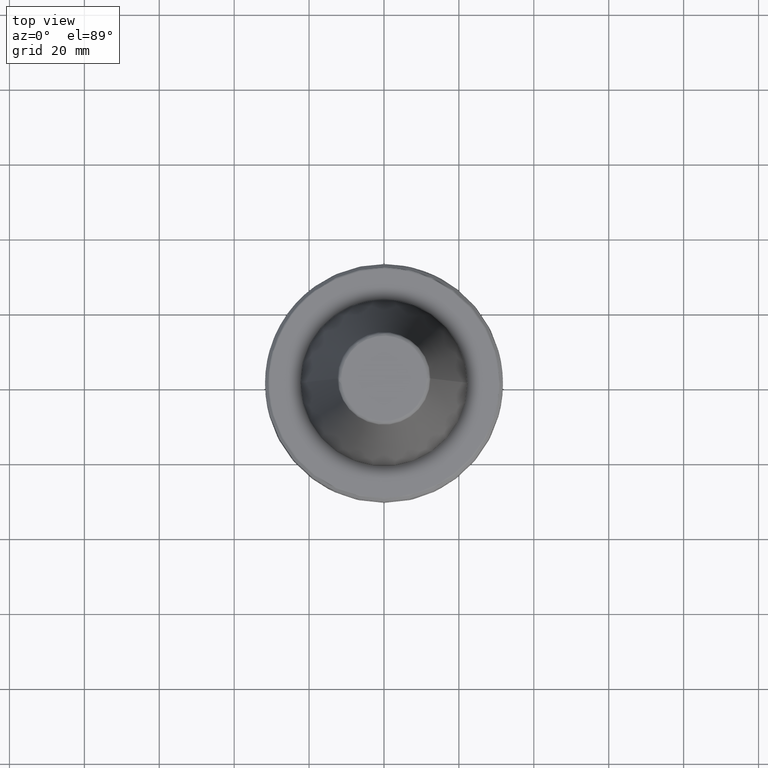
[diagram: clean part render]
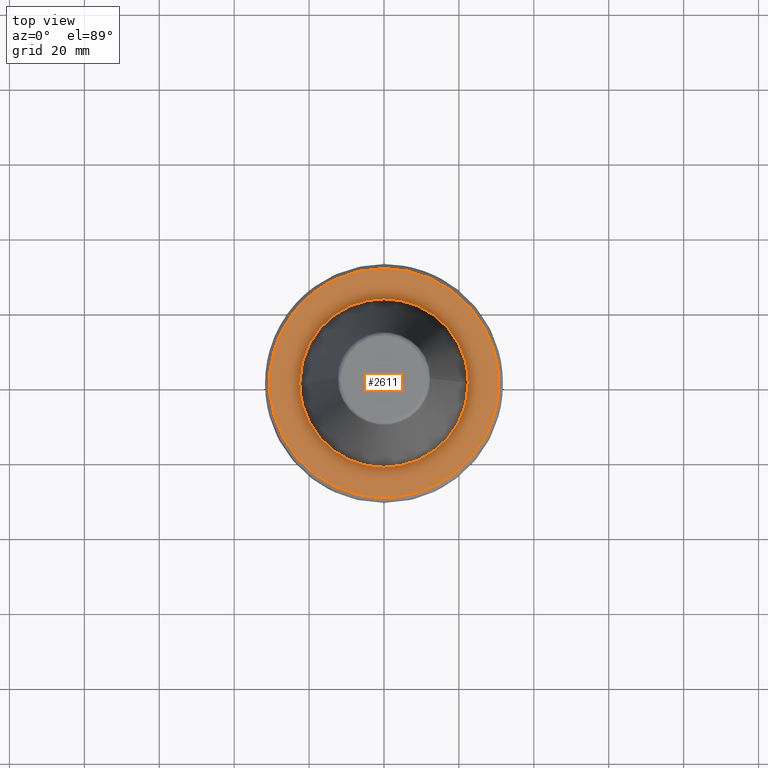
[diagram: same view with one face highlighted and labeled with its STEP entity id]
A machine part, top view. The second image highlights one B-rep face of the part: STEP entity #2611.
In plain terms, the highlighted planar face has unit normal (0, 0, 1).
Its self-contained STEP definition (entity closure, byte-faithful):
#4 = CARTESIAN_POINT ( 'NONE',  ( 2.528533460621721600, 30.47970956005833500, -3.200000000000000600 ) ) ;
#10 = CARTESIAN_POINT ( 'NONE',  ( -8.442993445774373400, 29.39627059819971000, -3.200000000000001100 ) ) ;
#24 = ORIENTED_EDGE ( 'NONE', *, *, #1179, .T. ) ;
#42 = ORIENTED_EDGE ( 'NONE', *, *, #1613, .T. ) ;
#48 = CARTESIAN_POINT ( 'NONE',  ( -29.30593451889330600, -8.750000000000005300, -3.199999999999998800 ) ) ;
#78 = CARTESIAN_POINT ( 'NONE',  ( 8.896980882703543300, -20.66783356944393200, -3.199999999999999300 ) ) ;
#86 = CARTESIAN_POINT ( 'NONE',  ( -28.10145510426450200, 12.21006217780604800, -3.200000000000000200 ) ) ;
#87 = CARTESIAN_POINT ( 'NONE',  ( 11.67597141480891300, -19.24838585783804100, -3.200000000000000600 ) ) ;
#93 = CARTESIAN_POINT ( 'NONE',  ( 9.504079748831721000, -20.40055232577914500, -3.200000000000000600 ) ) ;
#96 = CARTESIAN_POINT ( 'NONE',  ( -21.74157624392201900, 5.873028755144217100, -3.200000000000000200 ) ) ;
#99 = CARTESIAN_POINT ( 'NONE',  ( 15.48792760813897800, -26.42690957763580100, -3.200000000000000200 ) ) ;
#103 = CARTESIAN_POINT ( 'NONE',  ( -18.88550870197691400, 12.23098025896405400, -3.200000000000000200 ) ) ;
#114 = CARTESIAN_POINT ( 'NONE',  ( -8.896980882711639900, 20.66783356944006700, -3.199999999999999700 ) ) ;
#123 = CARTESIAN_POINT ( 'NONE',  ( -4.115307463143350800, 22.12045849206799600, -3.199999999999999700 ) ) ;
#136 = CARTESIAN_POINT ( 'NONE',  ( 5.873028755120320600, 21.74157624393063400, -3.200000000000000600 ) ) ;
#147 = CARTESIAN_POINT ( 'NONE',  ( 12.23098025896375600, 18.88550870197690300, -3.199999999999999700 ) ) ;
#156 = CARTESIAN_POINT ( 'NONE',  ( 20.66783356944120300, 8.896980882709847500, -3.200000000000000200 ) ) ;
#167 = CARTESIAN_POINT ( 'NONE',  ( 22.12045798509555900, 4.115310202398825700, -3.200000000000000600 ) ) ;
#175 = CIRCLE ( 'NONE', #420, 30.58431457505076500 ) ;
#189 = CARTESIAN_POINT ( 'NONE',  ( -27.28410426008420900, -13.84330885026471600, -3.199999999999999300 ) ) ;
#194 = CARTESIAN_POINT ( 'NONE',  ( -27.65365956857750300, -13.06437642884285200, -3.199999999999999700 ) ) ;
#199 = CARTESIAN_POINT ( 'NONE',  ( -27.67364674244797800, -13.02197758003961100, -3.199999999999998400 ) ) ;
#209 = CARTESIAN_POINT ( 'NONE',  ( -8.112282896148109000, -20.98673507276421500, -3.200000000000000200 ) ) ;
#213 = CARTESIAN_POINT ( 'NONE',  ( 12.39175045571029600, -18.78040064549236700, -3.200000000000000200 ) ) ;
#214 = CARTESIAN_POINT ( 'NONE',  ( 29.30593451889330900, 8.750000000000010700, -3.199999999999994400 ) ) ;
#217 = CARTESIAN_POINT ( 'NONE',  ( 12.47437238289376500, -18.72563884435562500, -3.200000000000000600 ) ) ;
#221 = ORIENTED_EDGE ( 'NONE', *, *, #3204, .T. ) ;
#226 = CARTESIAN_POINT ( 'NONE',  ( 5.341505914814308500, -21.86223353763812900, -3.199999999999999700 ) ) ;
#227 = CARTESIAN_POINT ( 'NONE',  ( 24.54047191476656700, 18.25550594148981200, -3.199999999999999700 ) ) ;
#230 = CARTESIAN_POINT ( 'NONE',  ( 6.571610993358049800, -21.54071728405216400, -3.200000000000000600 ) ) ;
#235 = CARTESIAN_POINT ( 'NONE',  ( 7.603831144541866000, -21.18878749288407800, -3.200000000000000200 ) ) ;
#237 = VERTEX_POINT ( 'NONE', #1427 ) ;
#239 = CARTESIAN_POINT ( 'NONE',  ( 8.324524703929661500, -20.90345235396846500, -3.200000000000000600 ) ) ;
#241 = CARTESIAN_POINT ( 'NONE',  ( 16.33427142385977900, 25.85726144149449000, -3.200000000000000200 ) ) ;
#251 = CARTESIAN_POINT ( 'NONE',  ( 1.756429892758242500, 30.54018886217256700, -3.200000000000000200 ) ) ;
#253 = CARTESIAN_POINT ( 'NONE',  ( 4.407618502877016700, -22.06440325786277500, -3.200000000000000600 ) ) ;
#254 = CARTESIAN_POINT ( 'NONE',  ( 4.719991316668444600, -22.00072453873692200, -3.200000000000000200 ) ) ;
#257 = CARTESIAN_POINT ( 'NONE',  ( 4.115307463144500100, -22.12045849206793200, -3.200000000000000600 ) ) ;
#260 = CARTESIAN_POINT ( 'NONE',  ( -9.340167935470905300, 29.12987215589119200, -3.200000000000001100 ) ) ;
#261 = CARTESIAN_POINT ( 'NONE',  ( -2.907343231839132800, -22.31611948088118800, -3.200000000000000600 ) ) ;
#266 = CARTESIAN_POINT ( 'NONE',  ( -1.715646395057947200, -22.45307472456143200, -3.200000000000000600 ) ) ;
#271 = CARTESIAN_POINT ( 'NONE',  ( -0.6879287486564484900, -22.50001621479418300, -3.200000000000000200 ) ) ;
#290 = CARTESIAN_POINT ( 'NONE',  ( 2.741286511513688400, -22.37475781689234500, -3.199999999999999700 ) ) ;
#300 = CARTESIAN_POINT ( 'NONE',  ( 1.375857497312903900, -22.49996757041163400, -3.199999999999999300 ) ) ;
#312 = CARTESIAN_POINT ( 'NONE',  ( -8.988933404976533500, -20.64043889494298900, -3.199999999999999700 ) ) ;
#318 = CARTESIAN_POINT ( 'NONE',  ( -8.237955812652499400, -20.93772414133978200, -3.199999999999999700 ) ) ;
#326 = CARTESIAN_POINT ( 'NONE',  ( 0.0000000000000000000, 0.0000000000000000000, -3.199999999999994400 ) ) ;
#327 = CARTESIAN_POINT ( 'NONE',  ( -8.197263642347373000, -20.95368502148340900, -3.199999999999999700 ) ) ;
#331 = B_SPLINE_CURVE_WITH_KNOTS ( 'NONE', 3,
 ( #214, #3037, #479, #2288, #749, #2551, #1012, #2807, #1281, #3046, #1539, #3301, #1805, #227, #2056, #490, #2300, #764, #2562, #1025, #2817, #1295, #3059, #1552, #3312, #1822, #241, #2067, #501, #2312, #775, #2575, #1036, #2830, #1308, #3070, #1563, #4, #1829, #251, #2077, #511, #2321, #784, #2588, #1051, #2838, #1320, #3082, #1576, #10, #1838, #260, #2087, #524, #2334, #793, #2601, #1060, #2846, #1330, #3094 ),
 .UNSPECIFIED., .F., .F.,
 ( 4, 1, 1, 1, 1, 2, 2, 1, 2, 2, 2, 1, 1, 2, 2, 1, 1, 1, 2, 2, 2, 1, 1, 1, 1, 2, 2, 1, 2, 2, 2, 1, 1, 2, 2, 1, 1, 1, 2, 2, 4 ),
 ( 0.0000000000000000000, 0.06249999999999914000, 0.09374999999999879300, 0.1093749999999986100, 0.1171874999999985700, 0.1210937499999985800, 0.1249999999999986100, 0.1562499999999987800, 0.1718749999999989500, 0.1874999999999990800, 0.2500000000000001100, 0.2812500000000005600, 0.2968750000000008300, 0.3046875000000010000, 0.3125000000000011700, 0.3437500000000018900, 0.3593750000000022200, 0.3671875000000023300, 0.3710937500000023900, 0.3750000000000024400, 0.5000000000000025500, 0.5625000000000025500, 0.5937500000000025500, 0.6093750000000025500, 0.6171875000000025500, 0.6210937500000025500, 0.6250000000000024400, 0.6562500000000025500, 0.6718750000000025500, 0.6875000000000025500, 0.7500000000000026600, 0.7812500000000026600, 0.7968750000000026600, 0.8046875000000026600, 0.8125000000000026600, 0.8437500000000025500, 0.8593750000000025500, 0.8671875000000025500, 0.8710937500000026600, 0.8750000000000026600, 1.000000000000000000 ),
 .UNSPECIFIED. ) ;
#333 = CARTESIAN_POINT ( 'NONE',  ( -11.75138774876684200, -19.18907189198004900, -3.200000000000000200 ) ) ;
#342 = CARTESIAN_POINT ( 'NONE',  ( -29.30593451889331300, 8.750000000000008900, -3.199999999999999300 ) ) ;
#343 = CARTESIAN_POINT ( 'NONE',  ( -11.18287332204048700, -19.53083148214458500, -3.200000000000000600 ) ) ;
#347 = CARTESIAN_POINT ( 'NONE',  ( -10.02279629560528400, -20.16961076428609100, -3.200000000000000600 ) ) ;
#349 = CARTESIAN_POINT ( 'NONE',  ( -21.14787063409543700, 7.686207123284956900, -3.200000000000000200 ) ) ;
#361 = CARTESIAN_POINT ( 'NONE',  ( -17.00797338682269500, 14.81177920651246400, -3.200000000000000600 ) ) ;
#372 = CARTESIAN_POINT ( 'NONE',  ( -4.071751450877116900, -22.12851860711453300, -3.199999999999999700 ) ) ;
#375 = CARTESIAN_POINT ( 'NONE',  ( -8.458563634142274500, 20.84958280862222700, -3.200000000000000200 ) ) ;
#379 = CARTESIAN_POINT ( 'NONE',  ( -4.051866326836864700, -22.13216683465148900, -3.199999999999999700 ) ) ;
#384 = CARTESIAN_POINT ( 'NONE',  ( -4.009555819172765800, -22.13987114982767300, -3.200000000000000200 ) ) ;
#388 = CARTESIAN_POINT ( 'NONE',  ( -1.375857497237935400, 22.49996757040714000, -3.199999999999999700 ) ) ;
#391 = CARTESIAN_POINT ( 'NONE',  ( -7.086048807701388300, -21.36063849915201700, -3.200000000000001100 ) ) ;
#393 = CARTESIAN_POINT ( 'NONE',  ( -5.873028755191068500, -21.74157624390884200, -3.200000000000001100 ) ) ;
#396 = CARTESIAN_POINT ( 'NONE',  ( 7.686207123274499500, 21.14787063409919600, -3.200000000000000600 ) ) ;
#400 = CARTESIAN_POINT ( 'NONE',  ( -4.811519987949943700, -21.99164062164117100, -3.199999999999999700 ) ) ;
#406 = CARTESIAN_POINT ( 'NONE',  ( 14.81177920650271000, 17.00797338683744500, -3.200000000000000600 ) ) ;
#419 = CARTESIAN_POINT ( 'NONE',  ( 20.84958280862257900, 8.458563634141711400, -3.200000000000000200 ) ) ;
#420 = AXIS2_PLACEMENT_3D ( 'NONE', #662, #888, #3262 ) ;
#430 = CARTESIAN_POINT ( 'NONE',  ( 22.50000000000000400, 1.376388306145680500, -3.200000000000000200 ) ) ;
#447 = CARTESIAN_POINT ( 'NONE',  ( 19.53083148214621900, -11.18287332203636600, -3.200000000000000200 ) ) ;
#465 = CARTESIAN_POINT ( 'NONE',  ( 13.42792791067997600, -18.06135158014202000, -3.199999999999999700 ) ) ;
#470 = CARTESIAN_POINT ( 'NONE',  ( 19.03780993567572800, -11.99256734168571200, -3.200000000000000200 ) ) ;
#473 = CARTESIAN_POINT ( 'NONE',  ( 19.18907189198100100, -11.75138774876444200, -3.200000000000001100 ) ) ;
#477 = CARTESIAN_POINT ( 'NONE',  ( 18.93590339580105900, -12.15280497094321500, -3.200000000000000200 ) ) ;
#479 = CARTESIAN_POINT ( 'NONE',  ( 28.33583760078837300, 11.62329757012846600, -3.200000000000001500 ) ) ;
#481 = CARTESIAN_POINT ( 'NONE',  ( 12.63533988221884200, -18.61742605471019700, -3.200000000000000200 ) ) ;
#484 = CARTESIAN_POINT ( 'NONE',  ( 12.87560569880346700, -18.45365423866068300, -3.200000000000000600 ) ) ;
#490 = CARTESIAN_POINT ( 'NONE',  ( 22.77429056695101300, 20.45246270162071100, -3.200000000000001100 ) ) ;
#492 = CARTESIAN_POINT ( 'NONE',  ( 17.00797338681919900, -14.81177920651095200, -3.200000000000000600 ) ) ;
#496 = CARTESIAN_POINT ( 'NONE',  ( 17.98264380952407700, -13.61204652636657500, -3.199999999999999700 ) ) ;
#499 = CARTESIAN_POINT ( 'NONE',  ( 18.88550870197563500, -12.23098025896565000, -3.200000000000000200 ) ) ;
#501 = CARTESIAN_POINT ( 'NONE',  ( 16.13498759199690400, 25.98207429179345200, -3.200000000000000200 ) ) ;
#507 = CARTESIAN_POINT ( 'NONE',  ( 15.36086717163637700, -16.45896426179050900, -3.199999999999999700 ) ) ;
#510 = CARTESIAN_POINT ( 'NONE',  ( 14.49938022714922100, -17.23607257882569900, -3.199999999999999300 ) ) ;
#511 = CARTESIAN_POINT ( 'NONE',  ( -0.1069271606362427600, 30.58574494882276800, -3.199999999999999700 ) ) ;
#512 = CARTESIAN_POINT ( 'NONE',  ( -6.054356345058203600, -29.98396483374370200, -3.199999999999999300 ) ) ;
#524 = CARTESIAN_POINT ( 'NONE',  ( -11.24038425298612900, 28.44688173159232700, -3.199999999999999300 ) ) ;
#528 = CARTESIAN_POINT ( 'NONE',  ( 4.139014538615635200, -22.11603594838316400, -3.200000000000000200 ) ) ;
#534 = CARTESIAN_POINT ( 'NONE',  ( 4.183831549480899500, -22.10760170058227900, -3.200000000000000200 ) ) ;
#539 = CARTESIAN_POINT ( 'NONE',  ( 4.251028217301676900, -22.09485092206981000, -3.200000000000000200 ) ) ;
#541 = CARTESIAN_POINT ( 'NONE',  ( 6.650821378641679400, -29.87181404184202200, -3.200000000000000600 ) ) ;
#550 = CARTESIAN_POINT ( 'NONE',  ( 5.458850156843987600, -30.10416084471147600, -3.199999999999999700 ) ) ;
#557 = CARTESIAN_POINT ( 'NONE',  ( 4.606748291940482100, -30.23542110148255100, -3.200000000000001100 ) ) ;
#568 = CARTESIAN_POINT ( 'NONE',  ( 8.370451108365493600, -20.88510905071769100, -3.200000000000001100 ) ) ;
#572 = CARTESIAN_POINT ( 'NONE',  ( 8.458563634139736100, -20.84958280862343500, -3.200000000000000600 ) ) ;
#580 = CARTESIAN_POINT ( 'NONE',  ( 8.590524805351991600, -20.79589492657481400, -3.199999999999999700 ) ) ;
#586 = CARTESIAN_POINT ( 'NONE',  ( -12.23098025896354500, -18.88550870197710900, -3.200000000000000200 ) ) ;
#592 = DIRECTION ( 'NONE',  ( 1.000000000000000000, 0.0000000000000000000, 0.0000000000000000000 ) ) ;
#593 = CARTESIAN_POINT ( 'NONE',  ( -12.15280497094398100, -18.93590339580075400, -3.199999999999999700 ) ) ;
#597 = CARTESIAN_POINT ( 'NONE',  ( -11.99256734168715800, -19.03780993567515600, -3.200000000000000200 ) ) ;
#601 = CARTESIAN_POINT ( 'NONE',  ( -22.45304634867162000, 1.715799754908170300, -3.200000000000000600 ) ) ;
#609 = CARTESIAN_POINT ( 'NONE',  ( -20.98673507276603100, 8.112282896141666200, -3.200000000000000600 ) ) ;
#615 = CARTESIAN_POINT ( 'NONE',  ( -21.54071728403163600, -6.571610993424445500, -3.200000000000000600 ) ) ;
#618 = CARTESIAN_POINT ( 'NONE',  ( -5.007473042363042900, -30.17190452210243400, -3.199999999999999700 ) ) ;
#621 = CARTESIAN_POINT ( 'NONE',  ( -14.49938022714616500, 17.23607257882436300, -3.199999999999999700 ) ) ;
#627 = CARTESIAN_POINT ( 'NONE',  ( -5.357254148467523800, -30.11268354680666400, -3.200000000000000200 ) ) ;
#634 = CARTESIAN_POINT ( 'NONE',  ( -8.324524703927975700, 20.90345235396907600, -3.199999999999999700 ) ) ;
#642 = CARTESIAN_POINT ( 'NONE',  ( 11.34454123684995600, -28.42400519015282300, -3.199999999999999700 ) ) ;
#644 = CARTESIAN_POINT ( 'NONE',  ( 1.715646394992351700, 22.45307472456536100, -3.200000000000000600 ) ) ;
#655 = CARTESIAN_POINT ( 'NONE',  ( 8.022211266182147000, -29.51842591294642700, -3.199999999999999300 ) ) ;
#658 = CARTESIAN_POINT ( 'NONE',  ( 8.112282896138385300, 20.98673507276721400, -3.200000000000000200 ) ) ;
#662 = CARTESIAN_POINT ( 'NONE',  ( 0.0000000000000000000, 0.0000000000000000000, -3.199999999999994400 ) ) ;
#668 = CARTESIAN_POINT ( 'NONE',  ( 17.23607257883289300, 14.49938022713325700, -3.200000000000000200 ) ) ;
#674 = CARTESIAN_POINT ( 'NONE',  ( 9.331192961516467900, -29.12613594598079600, -3.199999999999999300 ) ) ;
#676 = CARTESIAN_POINT ( 'NONE',  ( 20.90345235396888100, 8.324524703928553000, -3.200000000000000200 ) ) ;
#696 = CARTESIAN_POINT ( 'NONE',  ( 3.981098828338542500, -30.32522191696400100, -3.200000000000000600 ) ) ;
#699 = CARTESIAN_POINT ( 'NONE',  ( 20.98673507276421500, -8.112282896148103700, -3.200000000000000200 ) ) ;
#709 = CARTESIAN_POINT ( 'NONE',  ( -27.77681930598307900, -12.80099507031015300, -3.200000000000000600 ) ) ;
#712 = CARTESIAN_POINT ( 'NONE',  ( -27.91867295084787800, -12.49063015166110600, -3.199999999999999300 ) ) ;
#726 = CARTESIAN_POINT ( 'NONE',  ( -14.07778958758137100, -27.15192223846998900, -3.200000000000000200 ) ) ;
#739 = CARTESIAN_POINT ( 'NONE',  ( -14.17277443620803400, -27.10247095660044200, -3.200000000000000200 ) ) ;
#741 = FACE_BOUND ( 'NONE', #1114, .T. ) ;
#742 = CARTESIAN_POINT ( 'NONE',  ( -9.479920520532862900, -29.07806852477902400, -3.200000000000000600 ) ) ;
#748 = CARTESIAN_POINT ( 'NONE',  ( 9.284161809036266500, -29.14115916764551200, -3.199999999999999700 ) ) ;
#749 = CARTESIAN_POINT ( 'NONE',  ( 26.94337422490540500, 14.47847139620824200, -3.199999999999998800 ) ) ;
#751 = CARTESIAN_POINT ( 'NONE',  ( 9.187465360224598100, -29.17179097118384600, -3.200000000000000200 ) ) ;
#755 = CARTESIAN_POINT ( 'NONE',  ( 13.79955834376239000, -27.29438307719062400, -3.200000000000001100 ) ) ;
#764 = CARTESIAN_POINT ( 'NONE',  ( 20.78517142375889300, 22.45144644050803600, -3.199999999999999700 ) ) ;
#766 = CARTESIAN_POINT ( 'NONE',  ( 3.304367424510945100, -30.40973943781369100, -3.200000000000001500 ) ) ;
#775 = CARTESIAN_POINT ( 'NONE',  ( 11.80488663221136200, 28.31907149283932400, -3.199999999999999700 ) ) ;
#784 = CARTESIAN_POINT ( 'NONE',  ( -1.037282440261943200, 30.56832190549944500, -3.199999999999999700 ) ) ;
#792 = CARTESIAN_POINT ( 'NONE',  ( 22.63882571490952200, -20.58104395218990500, -3.200000000000000600 ) ) ;
#793 = CARTESIAN_POINT ( 'NONE',  ( -11.95872026364025100, 28.14951867897722700, -3.200000000000001500 ) ) ;
#796 = CARTESIAN_POINT ( 'NONE',  ( 21.98943496481200600, -21.25737027114117000, -3.200000000000001100 ) ) ;
#806 = CARTESIAN_POINT ( 'NONE',  ( -17.59524950984059200, -25.03042619208175200, -3.199999999999999300 ) ) ;
#810 = CARTESIAN_POINT ( 'NONE',  ( -19.62778218944514600, -23.51603751686526800, -3.200000000000001100 ) ) ;
#812 = VERTEX_POINT ( 'NONE', #1801 ) ;
#813 = CARTESIAN_POINT ( 'NONE',  ( -24.35467712833948900, 18.50000000000000000, -3.199999999999994400 ) ) ;
#814 = CARTESIAN_POINT ( 'NONE',  ( 21.01696416247756700, -22.22623960068250100, -3.200000000000000200 ) ) ;
#819 = CIRCLE ( 'NONE', #2349, 30.58431457505076500 ) ;
#837 = CARTESIAN_POINT ( 'NONE',  ( -20.66783356943510700, -8.896980882719226700, -3.200000000000000200 ) ) ;
#855 = CARTESIAN_POINT ( 'NONE',  ( -22.10760170058084000, -4.183831549485550900, -3.200000000000000200 ) ) ;
#871 = CARTESIAN_POINT ( 'NONE',  ( -22.22708190165376200, 3.501431974159047400, -3.199999999999999700 ) ) ;
#881 = CARTESIAN_POINT ( 'NONE',  ( -20.90345235396920400, -8.324524703927284700, -3.199999999999999700 ) ) ;
#885 = CARTESIAN_POINT ( 'NONE',  ( -20.93772414133938800, 8.237955812653009200, -3.200000000000000200 ) ) ;
#888 = DIRECTION ( 'NONE',  ( -0.0000000000000000000, -0.0000000000000000000, 1.000000000000000000 ) ) ;
#895 = CARTESIAN_POINT ( 'NONE',  ( -12.87560569880213800, 18.45365423866010000, -3.200000000000001100 ) ) ;
#905 = CARTESIAN_POINT ( 'NONE',  ( -6.571610993404996200, 21.54071728403503300, -3.199999999999999700 ) ) ;
#911 = CARTESIAN_POINT ( 'NONE',  ( 0.0000000000000000000, 0.0000000000000000000, -3.199999999999994400 ) ) ;
#915 = CARTESIAN_POINT ( 'NONE',  ( 3.501364879195867800, 22.22709431610727600, -3.200000000000000600 ) ) ;
#923 = EDGE_CURVE ( 'NONE', #3200, #3281, #1851, .T. ) ;
#927 = CARTESIAN_POINT ( 'NONE',  ( 8.237955812653522600, 20.93772414133914200, -3.199999999999999700 ) ) ;
#936 = CARTESIAN_POINT ( 'NONE',  ( 18.45365423866382000, 12.87560569879649600, -3.200000000000000200 ) ) ;
#941 = CARTESIAN_POINT ( 'NONE',  ( 21.76708313655939300, -21.48502183610759900, -3.200000000000000200 ) ) ;
#949 = CARTESIAN_POINT ( 'NONE',  ( 21.54071728404044400, 6.571610993388965500, -3.200000000000000200 ) ) ;
#951 = CARTESIAN_POINT ( 'NONE',  ( 21.54431431262226600, -21.70996927689732900, -3.200000000000000600 ) ) ;
#955 = CARTESIAN_POINT ( 'NONE',  ( 25.00162825172242300, -17.61641936754373800, -3.200000000000001100 ) ) ;
#961 = CARTESIAN_POINT ( 'NONE',  ( -24.73772846016212800, -18.00390437552417200, -3.200000000000001100 ) ) ;
#963 = CARTESIAN_POINT ( 'NONE',  ( -25.23910393721046200, -17.27398592321662800, -3.200000000000000200 ) ) ;
#970 = CARTESIAN_POINT ( 'NONE',  ( -25.60566437920638400, -16.72793511368144300, -3.199999999999999700 ) ) ;
#973 = CARTESIAN_POINT ( 'NONE',  ( -22.56109142496934400, -20.65127541912130800, -3.200000000000000200 ) ) ;
#979 = CARTESIAN_POINT ( 'NONE',  ( -23.04904609324717800, -20.11097302515148000, -3.200000000000001100 ) ) ;
#983 = B_SPLINE_CURVE_WITH_KNOTS ( 'NONE', 3,
 ( #1056, #2752, #1975, #1163, #712, #709, #1275, #199, #194, #189, #1461, #1459, #970, #2291, #2631, #1306, #963, #961, #1875, #979, #973, #1504, #1498, #1494, #999, #810, #806, #2825, #2599, #2586, #2566, #739, #726, #1790, #1673, #1664, #1182, #1272, #1266, #742, #1158, #1150, #1675, #512, #627, #618, #2757, #1751, #2645, #1961, #1960, #1147, #2715, #766, #696, #1225, #1218, #1972, #557, #550, #541, #655, #1198, #1366, #751, #748, #674, #1803, #642, #1388, #1238, #1235, #755, #2509, #99, #1660, #1324, #1321, #814, #951, #941, #1467, #796, #792, #1329, #1445, #1434, #955, #993, #990, #1952, #1945, #1939, #1574, #2074, #2590, #2786, #1736, #1732, #1257, #1048, #1043 ),
 .UNSPECIFIED., .F., .F.,
 ( 4, 1, 1, 1, 1, 2, 2, 1, 1, 1, 1, 2, 2, 1, 1, 1, 2, 2, 2, 1, 1, 1, 2, 2, 1, 1, 1, 1, 2, 2, 1, 1, 1, 1, 2, 2, 2, 1, 1, 1, 1, 2, 2, 1, 1, 1, 1, 2, 2, 1, 1, 1, 2, 2, 2, 1, 1, 1, 2, 2, 1, 1, 1, 1, 2, 2, 1, 1, 1, 1, 2, 2, 4 ),
 ( 0.0000000000000000000, 0.03124999999999780000, 0.04687499999999667600, 0.05468749999999608000, 0.05859374999999581600, 0.06054687499999568400, 0.06249999999999554500, 0.09374999999999403300, 0.1093749999999932600, 0.1171874999999928500, 0.1210937499999925900, 0.1230468749999924500, 0.1249999999999923100, 0.1562499999999910300, 0.1718749999999904200, 0.1796874999999900600, 0.1835937499999899200, 0.1874999999999897900, 0.2499999999999895600, 0.2812499999999894000, 0.2968749999999894500, 0.3046874999999894500, 0.3085937499999895100, 0.3124999999999895600, 0.3437499999999902300, 0.3593749999999906200, 0.3671874999999908400, 0.3710937499999909000, 0.3730468749999910100, 0.3749999999999910600, 0.4062499999999912800, 0.4218749999999913400, 0.4296874999999913400, 0.4335937499999913400, 0.4355468749999913400, 0.4374999999999912800, 0.4999999999999916700, 0.5312499999999919000, 0.5468749999999920100, 0.5546874999999921200, 0.5585937499999922300, 0.5605468749999922300, 0.5624999999999921200, 0.5937499999999924500, 0.6093749999999925600, 0.6171874999999925600, 0.6210937499999925600, 0.6230468749999925600, 0.6249999999999925600, 0.6562499999999924500, 0.6718749999999923400, 0.6796874999999923400, 0.6835937499999924500, 0.6874999999999924500, 0.7499999999999933400, 0.7812499999999938900, 0.7968749999999941200, 0.8046874999999942300, 0.8085937499999942300, 0.8124999999999943400, 0.8437499999999948900, 0.8593749999999952300, 0.8671874999999954500, 0.8710937499999956700, 0.8730468749999956700, 0.8749999999999957800, 0.9062499999999968900, 0.9218749999999974500, 0.9296874999999976700, 0.9335937499999976700, 0.9355468749999977800, 0.9374999999999978900, 1.000000000000000000 ),
 .UNSPECIFIED. ) ;
#987 = CARTESIAN_POINT ( 'NONE',  ( -20.40055232576401100, -9.504079748858595500, -3.199999999999999700 ) ) ;
#990 = CARTESIAN_POINT ( 'NONE',  ( 25.15049554832293300, -17.40274506740674100, -3.200000000000001100 ) ) ;
#993 = CARTESIAN_POINT ( 'NONE',  ( 25.09107183107505900, -17.48831565734377900, -3.200000000000000200 ) ) ;
#999 = CARTESIAN_POINT ( 'NONE',  ( -20.89129424424418200, -22.40114452922760100, -3.199999999999999700 ) ) ;
#1003 = CARTESIAN_POINT ( 'NONE',  ( 22.15133245634663300, -3.946100473371058700, -3.199999999999999700 ) ) ;
#1006 = CARTESIAN_POINT ( 'NONE',  ( 22.17743819738469600, -3.797954953886299600, -3.200000000000000600 ) ) ;
#1010 = CARTESIAN_POINT ( 'NONE',  ( 29.30593451889331300, -8.750000000000001800, -3.199999999999994400 ) ) ;
#1012 = CARTESIAN_POINT ( 'NONE',  ( 26.57327955334341500, 15.14158967653129500, -3.200000000000000200 ) ) ;
#1025 = CARTESIAN_POINT ( 'NONE',  ( 19.60237854233316300, 23.47705769606669400, -3.200000000000000200 ) ) ;
#1028 = CARTESIAN_POINT ( 'NONE',  ( 22.22708190165376200, -3.501431974169107800, -3.200000000000000200 ) ) ;
#1036 = CARTESIAN_POINT ( 'NONE',  ( 6.576107746312120000, 29.91282126790437300, -3.199999999999999700 ) ) ;
#1043 = CARTESIAN_POINT ( 'NONE',  ( 29.30593451889331300, -8.750000000000001800, -3.199999999999994400 ) ) ;
#1048 = CARTESIAN_POINT ( 'NONE',  ( 28.85918037031911600, -10.24629117990394200, -3.200000000000000600 ) ) ;
#1051 = CARTESIAN_POINT ( 'NONE',  ( -3.848954711185965200, 30.36703951688925700, -3.200000000000000600 ) ) ;
#1056 = CARTESIAN_POINT ( 'NONE',  ( -29.30593451889330600, -8.750000000000005300, -3.199999999999998800 ) ) ;
#1060 = CARTESIAN_POINT ( 'NONE',  ( -12.17478045277772700, 28.05674127324201800, -3.199999999999999300 ) ) ;
#1061 = EDGE_CURVE ( 'NONE', #2113, #3277, #175, .T. ) ;
#1068 = CARTESIAN_POINT ( 'NONE',  ( 22.49999999999999600, -0.6880163828697204400, -3.199999999999998800 ) ) ;
#1080 = CARTESIAN_POINT ( 'NONE',  ( 21.36063849915200700, -7.086048807701382100, -3.199999999999998800 ) ) ;
#1084 = CARTESIAN_POINT ( 'NONE',  ( 21.74157624390884500, -5.873028755191072900, -3.200000000000000200 ) ) ;
#1091 = CARTESIAN_POINT ( 'NONE',  ( 21.99164062164117800, -4.811519987949947300, -3.200000000000000600 ) ) ;
#1095 = CARTESIAN_POINT ( 'NONE',  ( 30.58431457505076500, 0.0000000000000000000, -3.199999999999996600 ) ) ;
#1107 = VERTEX_POINT ( 'NONE', #1010 ) ;
#1112 = EDGE_CURVE ( 'NONE', #2781, #812, #2184, .T. ) ;
#1114 = EDGE_LOOP ( 'NONE', ( #1837, #2594 ) ) ;
#1117 = CARTESIAN_POINT ( 'NONE',  ( -22.12045798509555200, -4.115310202398622300, -3.200000000000000200 ) ) ;
#1126 = CARTESIAN_POINT ( 'NONE',  ( -22.11603594838243900, -4.139014538617989700, -3.200000000000000600 ) ) ;
#1131 = CARTESIAN_POINT ( 'NONE',  ( -22.15133245634663700, 3.946100473368277900, -3.200000000000000200 ) ) ;
#1136 = CARTESIAN_POINT ( 'NONE',  ( -22.50000000000000400, 2.755455298081544800E-015, -3.199999999999999300 ) ) ;
#1140 = CARTESIAN_POINT ( 'NONE',  ( -22.50000000000000700, -1.376388306158772500, -3.200000000000000600 ) ) ;
#1142 = CARTESIAN_POINT ( 'NONE',  ( -20.16961076429744200, 10.02279629559074100, -3.199999999999999300 ) ) ;
#1147 = CARTESIAN_POINT ( 'NONE',  ( 0.7805261269332110000, -30.58432787732824200, -3.200000000000000600 ) ) ;
#1150 = CARTESIAN_POINT ( 'NONE',  ( -8.608449994990852600, -29.35905586420431500, -3.200000000000001500 ) ) ;
#1153 = CARTESIAN_POINT ( 'NONE',  ( -12.47437238289334600, 18.72563884435544800, -3.200000000000000200 ) ) ;
#1158 = CARTESIAN_POINT ( 'NONE',  ( -9.429042497915617100, -29.09460387900038800, -3.200000000000000200 ) ) ;
#1163 = CARTESIAN_POINT ( 'NONE',  ( -28.19324632027987900, -11.86640829661781500, -3.200000000000000200 ) ) ;
#1168 = CARTESIAN_POINT ( 'NONE',  ( -4.719991316688983800, 22.00072453872944300, -3.200000000000000600 ) ) ;
#1172 = DIRECTION ( 'NONE',  ( 1.000000000000000000, 0.0000000000000000000, 0.0000000000000000000 ) ) ;
#1178 = CARTESIAN_POINT ( 'NONE',  ( 3.946081902440961000, 22.15133589249003200, -3.200000000000000600 ) ) ;
#1179 = EDGE_CURVE ( 'NONE', #3281, #1107, #983, .T. ) ;
#1182 = CARTESIAN_POINT ( 'NONE',  ( -10.07230210985404100, -28.87952157733320000, -3.200000000000000600 ) ) ;
#1185 = AXIS2_PLACEMENT_3D ( 'NONE', #2304, #1542, #2822 ) ;
#1188 = CARTESIAN_POINT ( 'NONE',  ( 10.02279629557633300, 20.16961076430403600, -3.200000000000000600 ) ) ;
#1198 = CARTESIAN_POINT ( 'NONE',  ( 8.703095408813183600, -29.32115263377833300, -3.199999999999999700 ) ) ;
#1201 = CARTESIAN_POINT ( 'NONE',  ( 18.72563884435662000, 12.47437238289156800, -3.199999999999999300 ) ) ;
#1211 = CARTESIAN_POINT ( 'NONE',  ( 22.00072453873180600, 4.719991316681966300, -3.200000000000000200 ) ) ;
#1218 = CARTESIAN_POINT ( 'NONE',  ( 4.463888020564998400, -30.25684056681911800, -3.199999999999998800 ) ) ;
#1225 = CARTESIAN_POINT ( 'NONE',  ( 4.319105167334708300, -30.27808647421170800, -3.199999999999999700 ) ) ;
#1235 = CARTESIAN_POINT ( 'NONE',  ( 13.61336996244277300, -27.38773233231018600, -3.200000000000001500 ) ) ;
#1238 = CARTESIAN_POINT ( 'NONE',  ( 13.33348093169566300, -27.52628396580366000, -3.200000000000000200 ) ) ;
#1246 = CARTESIAN_POINT ( 'NONE',  ( -16.45896426179448100, -15.36086717162741000, -3.200000000000001100 ) ) ;
#1257 = CARTESIAN_POINT ( 'NONE',  ( 28.30117587102769500, -11.69968984091869400, -3.200000000000000200 ) ) ;
#1266 = CARTESIAN_POINT ( 'NONE',  ( -9.578915174272756500, -29.04560989628474800, -3.199999999999999700 ) ) ;
#1269 = CARTESIAN_POINT ( 'NONE',  ( -29.30593451889331300, 8.750000000000008900, -3.199999999999999300 ) ) ;
#1272 = CARTESIAN_POINT ( 'NONE',  ( -9.727253638774389100, -28.99655467840012000, -3.200000000000000200 ) ) ;
#1275 = CARTESIAN_POINT ( 'NONE',  ( -27.71504625243770200, -12.93363446211562200, -3.200000000000000600 ) ) ;
#1281 = CARTESIAN_POINT ( 'NONE',  ( 26.46043628646610200, 15.33791319426062600, -3.200000000000000600 ) ) ;
#1292 = AXIS2_PLACEMENT_3D ( 'NONE', #911, #2702, #1172 ) ;
#1295 = CARTESIAN_POINT ( 'NONE',  ( 19.23818591258212900, 23.77638626440718600, -3.200000000000000200 ) ) ;
#1297 = CARTESIAN_POINT ( 'NONE',  ( -18.06135158014722800, -13.42792791066820300, -3.200000000000000600 ) ) ;
#1302 = CARTESIAN_POINT ( 'NONE',  ( -17.23607257883263300, -14.49938022713351800, -3.200000000000000200 ) ) ;
#1306 = CARTESIAN_POINT ( 'NONE',  ( -25.26695455758170900, -17.23321866383344100, -3.200000000000001500 ) ) ;
#1308 = CARTESIAN_POINT ( 'NONE',  ( 3.435970030489638600, 30.39351583441727200, -3.200000000000001100 ) ) ;
#1320 = CARTESIAN_POINT ( 'NONE',  ( -6.624788100386526300, 29.86976700630839700, -3.200000000000000600 ) ) ;
#1321 = CARTESIAN_POINT ( 'NONE',  ( 19.93203895168906900, -23.22435209602277700, -3.199999999999999700 ) ) ;
#1324 = CARTESIAN_POINT ( 'NONE',  ( 18.95028892444334900, -24.02085740249146500, -3.200000000000000600 ) ) ;
#1329 = CARTESIAN_POINT ( 'NONE',  ( 23.46525560282735900, -19.64699716460515300, -3.200000000000000200 ) ) ;
#1330 = CARTESIAN_POINT ( 'NONE',  ( -16.56085603397407600, 25.82766579423041300, -3.200000000000000200 ) ) ;
#1343 = CARTESIAN_POINT ( 'NONE',  ( -22.09485092206732700, -4.251028217309717600, -3.200000000000000600 ) ) ;
#1347 = CARTESIAN_POINT ( 'NONE',  ( -22.06440325785796100, -4.407618502892575000, -3.200000000000000200 ) ) ;
#1366 = CARTESIAN_POINT ( 'NONE',  ( 9.042334779843894700, -29.21737119051421100, -3.200000000000000200 ) ) ;
#1387 = CARTESIAN_POINT ( 'NONE',  ( -26.43773944749934700, 15.48610090929884100, -3.200000000000000600 ) ) ;
#1388 = CARTESIAN_POINT ( 'NONE',  ( 12.67616131524538200, -27.83926536632106900, -3.199999999999999300 ) ) ;
#1395 = CARTESIAN_POINT ( 'NONE',  ( -22.13216582914423100, 4.051871761184235000, -3.200000000000000200 ) ) ;
#1407 = CARTESIAN_POINT ( 'NONE',  ( -19.18907189198502300, 11.75138774876048900, -3.200000000000000600 ) ) ;
#1415 = CARTESIAN_POINT ( 'NONE',  ( -11.67597141481949700, 19.24838585783297900, -3.200000000000001100 ) ) ;
#1425 = CARTESIAN_POINT ( 'NONE',  ( -4.251028217307362100, 22.09485092206773900, -3.200000000000001100 ) ) ;
#1427 = CARTESIAN_POINT ( 'NONE',  ( -18.50000000000006400, 24.35467712833943900, -3.199999999999994400 ) ) ;
#1434 = CARTESIAN_POINT ( 'NONE',  ( 24.79077054220048000, -17.91356280173779000, -3.199999999999999300 ) ) ;
#1437 = CARTESIAN_POINT ( 'NONE',  ( 4.051866326834534100, 22.13216683465163800, -3.200000000000001100 ) ) ;
#1445 = CARTESIAN_POINT ( 'NONE',  ( 24.36043102569355800, -18.50078877836920200, -3.200000000000001100 ) ) ;
#1454 = CARTESIAN_POINT ( 'NONE',  ( 11.75138774875418000, 19.18907189198790100, -3.200000000000001100 ) ) ;
#1459 = CARTESIAN_POINT ( 'NONE',  ( -25.98948903614969200, -16.13194971530072100, -3.200000000000000200 ) ) ;
#1461 = CARTESIAN_POINT ( 'NONE',  ( -26.72045296951694100, -14.91898429064515100, -3.200000000000001100 ) ) ;
#1463 = CARTESIAN_POINT ( 'NONE',  ( 19.24838585783446000, 11.67597141481715200, -3.199999999999999700 ) ) ;
#1467 = CARTESIAN_POINT ( 'NONE',  ( 21.91487604512462500, -21.33423715767088100, -3.200000000000001100 ) ) ;
#1472 = CARTESIAN_POINT ( 'NONE',  ( 22.09485092206839200, 4.251028217305421500, -3.199999999999999700 ) ) ;
#1482 = CARTESIAN_POINT ( 'NONE',  ( -19.82135572081725200, -10.69502432682423000, -3.200000000000000600 ) ) ;
#1489 = CARTESIAN_POINT ( 'NONE',  ( -19.24838585782649900, -11.67597141482940200, -3.199999999999999700 ) ) ;
#1492 = CARTESIAN_POINT ( 'NONE',  ( -18.78040064549380300, -12.39175045570773800, -3.200000000000000600 ) ) ;
#1494 = CARTESIAN_POINT ( 'NONE',  ( -22.13473294562287600, -21.10604030069013600, -3.200000000000000600 ) ) ;
#1498 = CARTESIAN_POINT ( 'NONE',  ( -22.20554153728712200, -21.03152593330405300, -3.200000000000000600 ) ) ;
#1504 = CARTESIAN_POINT ( 'NONE',  ( -22.34825637510676100, -20.87982665237620600, -3.200000000000000200 ) ) ;
#1528 = CARTESIAN_POINT ( 'NONE',  ( 22.31609819896382200, -2.907458251744042200, -3.200000000000000600 ) ) ;
#1531 = CARTESIAN_POINT ( 'NONE',  ( 22.45304634867161300, -1.715799754931167900, -3.200000000000000200 ) ) ;
#1535 = CARTESIAN_POINT ( 'NONE',  ( 22.13986916256529000, -4.009566559498702000, -3.199999999999999300 ) ) ;
#1539 = CARTESIAN_POINT ( 'NONE',  ( 25.61393462946988500, 16.73340307639763600, -3.200000000000000200 ) ) ;
#1542 = DIRECTION ( 'NONE',  ( 0.0000000000000000000, 0.0000000000000000000, 1.000000000000000000 ) ) ;
#1552 = CARTESIAN_POINT ( 'NONE',  ( 17.88588114719885200, 24.82288649368537000, -3.200000000000000200 ) ) ;
#1563 = CARTESIAN_POINT ( 'NONE',  ( 2.680059272109405200, 30.46677238502030600, -3.200000000000000200 ) ) ;
#1564 = CARTESIAN_POINT ( 'NONE',  ( 22.50000000000000400, 0.0000000000000000000, -3.199999999999999300 ) ) ;
#1574 = CARTESIAN_POINT ( 'NONE',  ( 26.99856130459875900, -14.37953634111175700, -3.200000000000001100 ) ) ;
#1576 = CARTESIAN_POINT ( 'NONE',  ( -8.141340568195667900, 29.48124923292953900, -3.200000000000001100 ) ) ;
#1578 = CARTESIAN_POINT ( 'NONE',  ( 22.12851860711453600, -4.071751450877114200, -3.200000000000000200 ) ) ;
#1582 = CARTESIAN_POINT ( 'NONE',  ( 22.13216582914422800, -4.051871761185046800, -3.199999999999999300 ) ) ;
#1613 = EDGE_CURVE ( 'NONE', #1107, #2113, #819, .T. ) ;
#1635 = EDGE_CURVE ( 'NONE', #2738, #3200, #2864, .T. ) ;
#1642 = CARTESIAN_POINT ( 'NONE',  ( -7.984698353444732000, -21.03591195338748700, -3.200000000000000200 ) ) ;
#1650 = CARTESIAN_POINT ( 'NONE',  ( -24.35467712833948900, 18.50000000000000000, -3.199999999999994400 ) ) ;
#1653 = CARTESIAN_POINT ( 'NONE',  ( -7.686207123305462300, -21.14787063408966000, -3.200000000000000600 ) ) ;
#1656 = CARTESIAN_POINT ( 'NONE',  ( -21.99164062164871000, 4.811519987923173100, -3.200000000000001100 ) ) ;
#1660 = CARTESIAN_POINT ( 'NONE',  ( 16.91770336023969200, -25.53517509604582600, -3.200000000000000600 ) ) ;
#1664 = CARTESIAN_POINT ( 'NONE',  ( -10.75810060098333100, -28.63517167118836300, -3.200000000000000600 ) ) ;
#1667 = CARTESIAN_POINT ( 'NONE',  ( -18.93590339580232400, 12.15280497094196100, -3.199999999999999700 ) ) ;
#1673 = CARTESIAN_POINT ( 'NONE',  ( -12.11250377912194600, -28.10533704285466800, -3.200000000000001100 ) ) ;
#1675 = CARTESIAN_POINT ( 'NONE',  ( -7.438720675766394800, -29.68542035773223400, -3.200000000000001500 ) ) ;
#1676 = ORIENTED_EDGE ( 'NONE', *, *, #1635, .T. ) ;
#1679 = CARTESIAN_POINT ( 'NONE',  ( -9.504079748845599700, 20.40055232577251900, -3.200000000000001500 ) ) ;
#1687 = CARTESIAN_POINT ( 'NONE',  ( -21.18878749287234700, -7.603831144579803700, -3.199999999999998800 ) ) ;
#1695 = CARTESIAN_POINT ( 'NONE',  ( -4.139014538617297000, 22.11603594838256000, -3.200000000000000200 ) ) ;
#1702 = CARTESIAN_POINT ( 'NONE',  ( 4.811519987909519200, 21.99164062165363400, -3.200000000000000200 ) ) ;
#1714 = CARTESIAN_POINT ( 'NONE',  ( 12.15280497093997500, 18.93590339580323000, -3.200000000000000200 ) ) ;
#1717 = AXIS2_PLACEMENT_3D ( 'NONE', #2833, #2839, #2844 ) ;
#1726 = CARTESIAN_POINT ( 'NONE',  ( 20.40055232577446300, 9.504079748842523000, -3.200000000000000600 ) ) ;
#1732 = CARTESIAN_POINT ( 'NONE',  ( 27.61100680695630400, -13.15427429998554700, -3.199999999999999700 ) ) ;
#1736 = CARTESIAN_POINT ( 'NONE',  ( 27.58831379343103400, -13.20180910046895500, -3.199999999999999300 ) ) ;
#1738 = CARTESIAN_POINT ( 'NONE',  ( 22.11603594838275600, 4.139014538616730300, -3.200000000000001100 ) ) ;
#1751 = CARTESIAN_POINT ( 'NONE',  ( -4.757131534841852800, -30.21212539776593100, -3.200000000000000600 ) ) ;
#1790 = CARTESIAN_POINT ( 'NONE',  ( -13.24394569617793300, -27.58067624820742500, -3.200000000000000200 ) ) ;
#1797 = CARTESIAN_POINT ( 'NONE',  ( -20.79589492657008900, -8.590524805360397300, -3.200000000000000200 ) ) ;
#1801 = CARTESIAN_POINT ( 'NONE',  ( -22.50000000000000400, 2.755455298081544800E-015, -3.199999999999999300 ) ) ;
#1803 = CARTESIAN_POINT ( 'NONE',  ( 10.17404257737704800, -28.85454279251768000, -3.200000000000000600 ) ) ;
#1805 = CARTESIAN_POINT ( 'NONE',  ( 24.72355445174982700, 18.00675945254775100, -3.199999999999999300 ) ) ;
#1822 = CARTESIAN_POINT ( 'NONE',  ( 16.53138120579299300, 25.73240088655014900, -3.199999999999999700 ) ) ;
#1823 = CARTESIAN_POINT ( 'NONE',  ( 21.03591195338748300, -7.984698353444730200, -3.199999999999999300 ) ) ;
#1826 = ORIENTED_EDGE ( 'NONE', *, *, #2980, .T. ) ;
#1829 = CARTESIAN_POINT ( 'NONE',  ( 2.454392795799679000, 30.48577087148544300, -3.200000000000000200 ) ) ;
#1833 = CARTESIAN_POINT ( 'NONE',  ( -20.84958280862066700, -8.458563634144654800, -3.200000000000000600 ) ) ;
#1837 = ORIENTED_EDGE ( 'NONE', *, *, #2195, .T. ) ;
#1838 = CARTESIAN_POINT ( 'NONE',  ( -8.594763330011250700, 29.35224666533187200, -3.200000000000000600 ) ) ;
#1851 = CIRCLE ( 'NONE', #1717, 30.58431457505076500 ) ;
#1860 = CARTESIAN_POINT ( 'NONE',  ( -18.72563884435658800, -12.47437238289159500, -3.200000000000000200 ) ) ;
#1865 = CARTESIAN_POINT ( 'NONE',  ( -18.61742605471202700, -12.63533988221470800, -3.199999999999999700 ) ) ;
#1875 = CARTESIAN_POINT ( 'NONE',  ( -23.99031363753007500, -19.00230350504480000, -3.200000000000000600 ) ) ;
#1903 = CARTESIAN_POINT ( 'NONE',  ( 21.14787063408966400, -7.686207123305460500, -3.200000000000000600 ) ) ;
#1914 = CARTESIAN_POINT ( 'NONE',  ( -28.78023418526829900, 10.51070166328857000, -3.200000000000000200 ) ) ;
#1921 = CARTESIAN_POINT ( 'NONE',  ( -21.36063849916189700, 7.086048807666240500, -3.199999999999999300 ) ) ;
#1928 = CARTESIAN_POINT ( 'NONE',  ( -22.37479026312430700, -2.741111199249898400, -3.200000000000000600 ) ) ;
#1935 = CARTESIAN_POINT ( 'NONE',  ( -17.98264380950361400, 13.61204652639205500, -3.199999999999999700 ) ) ;
#1939 = CARTESIAN_POINT ( 'NONE',  ( 26.31643672377798600, -15.62062435596873700, -3.200000000000001100 ) ) ;
#1945 = CARTESIAN_POINT ( 'NONE',  ( 25.66906082884532800, -16.64808964171818000, -3.199999999999999300 ) ) ;
#1947 = CARTESIAN_POINT ( 'NONE',  ( -8.590524805356333000, 20.79589492657273900, -3.199999999999999700 ) ) ;
#1952 = CARTESIAN_POINT ( 'NONE',  ( 25.18089566416776700, -17.35872434407947300, -3.200000000000000200 ) ) ;
#1958 = CARTESIAN_POINT ( 'NONE',  ( -2.741286511587084400, 22.37475781688785000, -3.200000000000000200 ) ) ;
#1960 = CARTESIAN_POINT ( 'NONE',  ( -1.561052253866448600, -30.58428797049582900, -3.200000000000000200 ) ) ;
#1961 = CARTESIAN_POINT ( 'NONE',  ( -3.114025609210415700, -30.46541640381289900, -3.199999999999999700 ) ) ;
#1965 = CARTESIAN_POINT ( 'NONE',  ( 7.086048807648322300, 21.36063849916836300, -3.200000000000000600 ) ) ;
#1972 = CARTESIAN_POINT ( 'NONE',  ( 4.560392810198640800, -30.24244440558943100, -3.200000000000000200 ) ) ;
#1975 = CARTESIAN_POINT ( 'NONE',  ( -28.70585737795346400, -10.60399651555045600, -3.199999999999999300 ) ) ;
#1979 = CARTESIAN_POINT ( 'NONE',  ( 13.61204652639695000, 17.98264380950372400, -3.200000000000000200 ) ) ;
#1985 = CARTESIAN_POINT ( 'NONE',  ( 20.79589492657334300, 8.590524805355373800, -3.199999999999999300 ) ) ;
#1989 = CARTESIAN_POINT ( 'NONE',  ( -14.81177920650302200, -17.00797338683712900, -3.199999999999999300 ) ) ;
#1995 = CARTESIAN_POINT ( 'NONE',  ( -13.61204652640028800, -17.98264380950038800, -3.200000000000000200 ) ) ;
#1996 = CARTESIAN_POINT ( 'NONE',  ( 22.37479026312431400, 2.741111199236805400, -3.200000000000000600 ) ) ;
#2002 = CARTESIAN_POINT ( 'NONE',  ( -18.45365423866372400, -12.87560569879659900, -3.200000000000001100 ) ) ;
#2043 = B_SPLINE_CURVE_WITH_KNOTS ( 'NONE', 3,
 ( #2897, #3152, #601, #2404, #871, #2665, #1131, #2907, #1395, #3163, #1656, #96, #1921, #349, #2167, #609, #2411, #885, #2676, #1142, #2914, #1407, #3171, #1667, #103, #1935, #361, #2174, #621, #2425, #895, #2687, #1153, #2925, #1415, #3181, #1679, #114, #1947, #375, #2185, #634, #2436, #905, #2696, #1168, #2935, #1425, #3189, #1695, #123, #1958, #388, #2202, #644, #2448, #915, #2709, #1178, #2945, #1437, #3205, #1702, #136, #1965, #396, #2212, #658, #2459, #927, #2723, #1188, #2955, #1454, #3220, #1714, #147, #1979, #406, #2219, #668, #2475, #936, #2732, #1201, #2968, #1463, #3231, #1726, #156, #1985, #419, #2229, #676, #2484, #949, #2742, #1211, #2979, #1472, #3237, #1738, #167, #1996, #430, #2238 ),
 .UNSPECIFIED., .F., .F.,
 ( 4, 1, 1, 1, 1, 1, 2, 2, 1, 1, 1, 1, 2, 2, 1, 1, 1, 2, 2, 2, 1, 1, 1, 2, 2, 1, 1, 1, 1, 2, 2, 1, 1, 1, 1, 1, 2, 2, 2, 1, 1, 1, 1, 1, 2, 2, 1, 1, 1, 1, 2, 2, 1, 1, 1, 2, 2, 2, 1, 1, 1, 2, 2, 1, 1, 1, 1, 2, 2, 1, 1, 1, 1, 1, 2, 2, 4 ),
 ( 0.0000000000000000000, 0.03124999999999839000, 0.04687499999999758500, 0.05468749999999717600, 0.05859374999999699500, 0.06054687499999689800, 0.06152343749999685700, 0.06249999999999680800, 0.09374999999999644700, 0.1093749999999962800, 0.1171874999999962000, 0.1210937499999961300, 0.1230468749999961400, 0.1249999999999961400, 0.1562499999999958900, 0.1718749999999958400, 0.1796874999999957800, 0.1835937499999957800, 0.1874999999999957800, 0.2499999999999961100, 0.2812499999999963400, 0.2968749999999964500, 0.3046874999999965000, 0.3085937499999965600, 0.3124999999999965600, 0.3437499999999969500, 0.3593749999999971700, 0.3671874999999973400, 0.3710937499999974500, 0.3730468749999974500, 0.3749999999999974500, 0.4062499999999965000, 0.4218749999999960000, 0.4296874999999957800, 0.4335937499999956700, 0.4355468749999956100, 0.4365234374999956100, 0.4374999999999956100, 0.4999999999999944500, 0.5312499999999938900, 0.5468749999999936700, 0.5546874999999936700, 0.5585937499999935600, 0.5605468749999935600, 0.5615234374999934500, 0.5624999999999934500, 0.5937499999999932300, 0.6093749999999931200, 0.6171874999999931200, 0.6210937499999930100, 0.6230468749999930100, 0.6249999999999930100, 0.6562499999999930100, 0.6718749999999931200, 0.6796874999999932300, 0.6835937499999932300, 0.6874999999999932300, 0.7499999999999935600, 0.7812499999999936700, 0.7968749999999937800, 0.8046874999999938900, 0.8085937499999938900, 0.8124999999999938900, 0.8437499999999942300, 0.8593749999999944500, 0.8671874999999946700, 0.8710937499999947800, 0.8730468749999948900, 0.8749999999999950000, 0.9062499999999963400, 0.9218749999999971100, 0.9296874999999975600, 0.9335937499999976700, 0.9355468749999977800, 0.9365234374999977800, 0.9374999999999978900, 1.000000000000000000 ),
 .UNSPECIFIED. ) ;
#2056 = CARTESIAN_POINT ( 'NONE',  ( 23.59206616273024400, 19.50355204636085200, -3.200000000000000600 ) ) ;
#2067 = CARTESIAN_POINT ( 'NONE',  ( 16.20252111301821100, 25.94001894739949100, -3.199999999999999700 ) ) ;
#2074 = CARTESIAN_POINT ( 'NONE',  ( 27.32133677085897000, -13.74839770497927400, -3.199999999999999700 ) ) ;
#2077 = CARTESIAN_POINT ( 'NONE',  ( 0.8252062186218592800, 30.58430088160812200, -3.200000000000000600 ) ) ;
#2087 = CARTESIAN_POINT ( 'NONE',  ( -10.22499329435953900, 28.83626103398711700, -3.200000000000000600 ) ) ;
#2088 = CARTESIAN_POINT ( 'NONE',  ( 20.93772414133970000, -8.237955812652693100, -3.200000000000000200 ) ) ;
#2113 = VERTEX_POINT ( 'NONE', #1095 ) ;
#2120 = FACE_OUTER_BOUND ( 'NONE', #2151, .T. ) ;
#2122 = CARTESIAN_POINT ( 'NONE',  ( 22.50000000000000400, 0.0000000000000000000, -3.199999999999999300 ) ) ;
#2147 = DIRECTION ( 'NONE',  ( -0.0000000000000000000, -0.0000000000000000000, 1.000000000000000000 ) ) ;
#2151 = EDGE_LOOP ( 'NONE', ( #1826, #1676, #2766, #24, #42, #3135, #221 ) ) ;
#2167 = CARTESIAN_POINT ( 'NONE',  ( -21.03591195339058500, 7.984698353433742600, -3.200000000000000600 ) ) ;
#2174 = CARTESIAN_POINT ( 'NONE',  ( -15.36086717163463800, 16.45896426178976300, -3.200000000000001100 ) ) ;
#2184 = B_SPLINE_CURVE_WITH_KNOTS ( 'NONE', 3,
 ( #1564, #1068, #1531, #1528, #1028, #1006, #1003, #1535, #1582, #1578, #1091, #1084, #1080, #1903, #1823, #699, #2564, #2088, #2395, #3266, #447, #473, #470, #477, #499, #496, #492, #507, #510, #465, #484, #481, #217, #213, #87, #2401, #93, #78, #580, #572, #568, #239, #235, #230, #226, #254, #253, #539, #534, #528, #257, #290, #300, #271, #266, #261, #2597, #2557, #2549, #384, #379, #372, #400, #393, #391, #1653, #1642, #209, #327, #318, #312, #347, #343, #333, #597, #593, #586, #1995, #1989, #1246, #1302, #1297, #2002, #1865, #1860, #1492, #1489, #1482, #987, #837, #1797, #1833, #2776, #881, #1687, #615, #2891, #2640, #1347, #1343, #855, #1126, #1117, #1928, #1140, #1136 ),
 .UNSPECIFIED., .F., .F.,
 ( 4, 1, 1, 1, 1, 1, 2, 2, 1, 1, 1, 1, 2, 2, 1, 1, 1, 2, 2, 2, 1, 1, 1, 2, 2, 1, 1, 1, 1, 2, 2, 1, 1, 1, 1, 1, 2, 2, 2, 1, 1, 1, 1, 1, 2, 2, 1, 1, 1, 1, 2, 2, 1, 1, 1, 2, 2, 2, 1, 1, 1, 2, 2, 1, 1, 1, 1, 2, 2, 1, 1, 1, 1, 1, 2, 2, 4 ),
 ( 0.0000000000000000000, 0.03124999999999908400, 0.04687499999999860500, 0.05468749999999836900, 0.05859374999999825800, 0.06054687499999819600, 0.06152343749999818900, 0.06249999999999818200, 0.09374999999999732200, 0.1093749999999968900, 0.1171874999999966700, 0.1210937499999965400, 0.1230468749999965400, 0.1249999999999965300, 0.1562499999999963600, 0.1718749999999962500, 0.1796874999999961700, 0.1835937499999960900, 0.1874999999999960000, 0.2499999999999953400, 0.2812499999999949500, 0.2968749999999948400, 0.3046874999999947800, 0.3085937499999947800, 0.3124999999999947800, 0.3437499999999951200, 0.3593749999999953400, 0.3671874999999953900, 0.3710937499999954500, 0.3730468749999955000, 0.3749999999999955600, 0.4062499999999958400, 0.4218749999999960000, 0.4296874999999960600, 0.4335937499999960600, 0.4355468749999960600, 0.4365234374999960600, 0.4374999999999960000, 0.4999999999999953400, 0.5312499999999950000, 0.5468749999999947800, 0.5546874999999946700, 0.5585937499999946700, 0.5605468749999945600, 0.5615234374999945600, 0.5624999999999944500, 0.5937499999999942300, 0.6093749999999941200, 0.6171874999999940000, 0.6210937499999938900, 0.6230468749999940000, 0.6249999999999940000, 0.6562499999999947800, 0.6718749999999952300, 0.6796874999999954500, 0.6835937499999955600, 0.6874999999999955600, 0.7499999999999982200, 0.7812499999999995600, 0.7968750000000002200, 0.8046875000000005600, 0.8085937500000007800, 0.8125000000000008900, 0.8437500000000022200, 0.8593750000000028900, 0.8671875000000032200, 0.8710937500000033300, 0.8730468750000034400, 0.8750000000000034400, 0.9062500000000028900, 0.9218750000000026600, 0.9296875000000025500, 0.9335937500000024400, 0.9355468750000023300, 0.9365234375000023300, 0.9375000000000022200, 1.000000000000000000 ),
 .UNSPECIFIED. ) ;
#2185 = CARTESIAN_POINT ( 'NONE',  ( -8.370451108366790300, 20.88510905071707000, -3.200000000000000200 ) ) ;
#2195 = EDGE_CURVE ( 'NONE', #812, #2781, #2043, .T. ) ;
#2202 = CARTESIAN_POINT ( 'NONE',  ( 0.6879287486189594700, 22.50001621479642500, -3.199999999999999300 ) ) ;
#2212 = CARTESIAN_POINT ( 'NONE',  ( 7.984698353428139100, 21.03591195339260300, -3.200000000000000200 ) ) ;
#2219 = CARTESIAN_POINT ( 'NONE',  ( 16.45896426179462000, 15.36086717162726200, -3.199999999999999700 ) ) ;
#2229 = CARTESIAN_POINT ( 'NONE',  ( 20.88510905071724400, 8.370451108366499000, -3.200000000000001100 ) ) ;
#2238 = CARTESIAN_POINT ( 'NONE',  ( 22.50000000000000400, 0.0000000000000000000, -3.199999999999999300 ) ) ;
#2288 = CARTESIAN_POINT ( 'NONE',  ( 27.43651020383327900, 13.53928854120142900, -3.200000000000001500 ) ) ;
#2291 = CARTESIAN_POINT ( 'NONE',  ( -25.40916637816982900, -17.02330348438504600, -3.200000000000001100 ) ) ;
#2300 = CARTESIAN_POINT ( 'NONE',  ( 21.46121072406793200, 21.79932372883541800, -3.199999999999999700 ) ) ;
#2304 = CARTESIAN_POINT ( 'NONE',  ( 0.0000000000000000000, 0.0000000000000000000, -3.200000000000000200 ) ) ;
#2311 = CIRCLE ( 'NONE', #1292, 30.58431457505076500 ) ;
#2312 = CARTESIAN_POINT ( 'NONE',  ( 13.99881594506804900, 27.30134385079309900, -3.200000000000000200 ) ) ;
#2321 = CARTESIAN_POINT ( 'NONE',  ( -0.7285515701686902100, 30.57722589313900800, -3.200000000000000200 ) ) ;
#2334 = CARTESIAN_POINT ( 'NONE',  ( -11.74385340894689000, 28.24048383201823900, -3.200000000000000200 ) ) ;
#2349 = AXIS2_PLACEMENT_3D ( 'NONE', #326, #2147, #592 ) ;
#2395 = CARTESIAN_POINT ( 'NONE',  ( 20.64043889494423200, -8.988933404973398200, -3.200000000000001100 ) ) ;
#2401 = CARTESIAN_POINT ( 'NONE',  ( 10.69502432678837800, -19.82135572083744200, -3.199999999999999700 ) ) ;
#2404 = CARTESIAN_POINT ( 'NONE',  ( -22.31609819896381800, 2.907458251726792000, -3.199999999999999700 ) ) ;
#2411 = CARTESIAN_POINT ( 'NONE',  ( -20.95368502148434700, 8.197263642344069000, -3.199999999999999300 ) ) ;
#2425 = CARTESIAN_POINT ( 'NONE',  ( -13.42792791067768300, 18.06135158014102500, -3.200000000000000200 ) ) ;
#2436 = CARTESIAN_POINT ( 'NONE',  ( -7.603831144568696100, 21.18878749287429700, -3.200000000000000200 ) ) ;
#2448 = CARTESIAN_POINT ( 'NONE',  ( 2.907343231789928200, 22.31611948088413700, -3.200000000000001100 ) ) ;
#2459 = CARTESIAN_POINT ( 'NONE',  ( 8.197263642342381500, 20.95368502148494400, -3.199999999999999700 ) ) ;
#2475 = CARTESIAN_POINT ( 'NONE',  ( 18.06135158014742400, 13.42792791066801300, -3.200000000000000600 ) ) ;
#2484 = CARTESIAN_POINT ( 'NONE',  ( 21.18878749287739200, 7.603831144559534600, -3.200000000000000600 ) ) ;
#2509 = CARTESIAN_POINT ( 'NONE',  ( 13.89121605745029900, -27.24785232258835400, -3.199999999999999700 ) ) ;
#2549 = CARTESIAN_POINT ( 'NONE',  ( -3.946081902448917300, -22.15133589248955200, -3.200000000000000600 ) ) ;
#2551 = CARTESIAN_POINT ( 'NONE',  ( 26.68593816532888500, 14.94335966607923900, -3.199999999999998800 ) ) ;
#2557 = CARTESIAN_POINT ( 'NONE',  ( -3.797919010166013600, -22.17744484798386800, -3.200000000000001100 ) ) ;
#2562 = CARTESIAN_POINT ( 'NONE',  ( 19.96233499371359700, 23.17496761740696300, -3.199999999999998800 ) ) ;
#2564 = CARTESIAN_POINT ( 'NONE',  ( 20.95368502148340500, -8.197263642347369500, -3.199999999999999700 ) ) ;
#2565 = PLANE ( 'NONE',  #1185 ) ;
#2566 = CARTESIAN_POINT ( 'NONE',  ( -14.35953925150205800, -27.00399422412593600, -3.200000000000000200 ) ) ;
#2575 = CARTESIAN_POINT ( 'NONE',  ( 8.333223866092332300, 29.45234853338911300, -3.200000000000000600 ) ) ;
#2586 = CARTESIAN_POINT ( 'NONE',  ( -14.63881711984340800, -26.85489300922450800, -3.199999999999999700 ) ) ;
#2588 = CARTESIAN_POINT ( 'NONE',  ( -2.603266312660773800, 30.49913331157687700, -3.200000000000000600 ) ) ;
#2590 = CARTESIAN_POINT ( 'NONE',  ( 27.47815279795154100, -13.43017972973703400, -3.199999999999999700 ) ) ;
#2594 = ORIENTED_EDGE ( 'NONE', *, *, #1112, .T. ) ;
#2597 = CARTESIAN_POINT ( 'NONE',  ( -3.501364879224580000, -22.22709431610556100, -3.200000000000000600 ) ) ;
#2599 = CARTESIAN_POINT ( 'NONE',  ( -15.28437999710880700, -26.49728736112676600, -3.200000000000000200 ) ) ;
#2601 = CARTESIAN_POINT ( 'NONE',  ( -12.10176357994283300, 28.08831770797953500, -3.199999999999999700 ) ) ;
#2611 = ADVANCED_FACE ( 'NONE', ( #2120, #741 ), #2565, .T. ) ;
#2631 = CARTESIAN_POINT ( 'NONE',  ( -25.32397030503309300, -17.14932757286798500, -3.200000000000000200 ) ) ;
#2640 = CARTESIAN_POINT ( 'NONE',  ( -22.00072453872795100, -4.719991316697491600, -3.200000000000000600 ) ) ;
#2645 = CARTESIAN_POINT ( 'NONE',  ( -4.705085878610024300, -30.22027126947322600, -3.199999999999999700 ) ) ;
#2665 = CARTESIAN_POINT ( 'NONE',  ( -22.17743819738468900, 3.797954953880907400, -3.199999999999999700 ) ) ;
#2676 = CARTESIAN_POINT ( 'NONE',  ( -20.64043889494947600, 8.988933404968230800, -3.200000000000000600 ) ) ;
#2687 = CARTESIAN_POINT ( 'NONE',  ( -12.63533988221804100, 18.61742605470986000, -3.200000000000000200 ) ) ;
#2696 = CARTESIAN_POINT ( 'NONE',  ( -5.341505914849514100, 21.86223353762529300, -3.200000000000000600 ) ) ;
#2702 = DIRECTION ( 'NONE',  ( -0.0000000000000000000, -0.0000000000000000000, 1.000000000000000000 ) ) ;
#2709 = CARTESIAN_POINT ( 'NONE',  ( 3.797919010150632600, 22.17744484798479100, -3.200000000000000600 ) ) ;
#2715 = CARTESIAN_POINT ( 'NONE',  ( 1.948029713514684000, -30.53976102089345400, -3.200000000000000600 ) ) ;
#2723 = CARTESIAN_POINT ( 'NONE',  ( 8.988933404959995600, 20.64043889495324200, -3.200000000000000600 ) ) ;
#2732 = CARTESIAN_POINT ( 'NONE',  ( 18.61742605471209400, 12.63533988221464600, -3.199999999999999700 ) ) ;
#2738 = VERTEX_POINT ( 'NONE', #813 ) ;
#2742 = CARTESIAN_POINT ( 'NONE',  ( 21.86223353762935800, 5.341505914837489000, -3.200000000000000600 ) ) ;
#2752 = CARTESIAN_POINT ( 'NONE',  ( -29.08260568820441300, -9.497984010097116700, -3.200000000000000200 ) ) ;
#2757 = CARTESIAN_POINT ( 'NONE',  ( -4.857303280930590700, -30.19618385839299200, -3.200000000000000600 ) ) ;
#2766 = ORIENTED_EDGE ( 'NONE', *, *, #923, .T. ) ;
#2776 = CARTESIAN_POINT ( 'NONE',  ( -20.88510905071626700, -8.370451108368008900, -3.199999999999999700 ) ) ;
#2781 = VERTEX_POINT ( 'NONE', #2122 ) ;
#2786 = CARTESIAN_POINT ( 'NONE',  ( 27.54438001541174000, -13.29323302809550500, -3.200000000000000200 ) ) ;
#2807 = CARTESIAN_POINT ( 'NONE',  ( 26.49765628487153500, 15.27351905694540700, -3.200000000000000600 ) ) ;
#2817 = CARTESIAN_POINT ( 'NONE',  ( 19.36078262650725900, 23.67667543167862500, -3.200000000000001500 ) ) ;
#2822 = DIRECTION ( 'NONE',  ( 1.000000000000000000, 0.0000000000000000000, -0.0000000000000000000 ) ) ;
#2825 = CARTESIAN_POINT ( 'NONE',  ( -16.55116382284848000, -25.74326481162033500, -3.200000000000000200 ) ) ;
#2830 = CARTESIAN_POINT ( 'NONE',  ( 4.488890650640665400, 30.26424933309286300, -3.199999999999999700 ) ) ;
#2833 = CARTESIAN_POINT ( 'NONE',  ( 0.0000000000000000000, 0.0000000000000000000, -3.199999999999994400 ) ) ;
#2838 = CARTESIAN_POINT ( 'NONE',  ( -5.703788022652458900, 30.05429890997482900, -3.200000000000000200 ) ) ;
#2839 = DIRECTION ( 'NONE',  ( -0.0000000000000000000, -0.0000000000000000000, 1.000000000000000000 ) ) ;
#2844 = DIRECTION ( 'NONE',  ( 1.000000000000000000, 0.0000000000000000000, 0.0000000000000000000 ) ) ;
#2846 = CARTESIAN_POINT ( 'NONE',  ( -14.47569103930937800, 27.05153356262609400, -3.199999999999999300 ) ) ;
#2864 = B_SPLINE_CURVE_WITH_KNOTS ( 'NONE', 3,
 ( #1650, #3155, #1387, #86, #1914, #342 ),
 .UNSPECIFIED., .F., .F.,
 ( 4, 2, 4 ),
 ( 0.0000000000000000000, 0.5000000000000000000, 1.000000000000000000 ),
 .UNSPECIFIED. ) ;
#2891 = CARTESIAN_POINT ( 'NONE',  ( -21.86223353762273500, -5.341505914864100600, -3.200000000000000600 ) ) ;
#2897 = CARTESIAN_POINT ( 'NONE',  ( -22.50000000000000400, 2.755455298081544800E-015, -3.199999999999999300 ) ) ;
#2907 = CARTESIAN_POINT ( 'NONE',  ( -22.13986916256529700, 4.009566559497096200, -3.200000000000000200 ) ) ;
#2914 = CARTESIAN_POINT ( 'NONE',  ( -19.53083148215308600, 11.18287332202958400, -3.199999999999999300 ) ) ;
#2925 = CARTESIAN_POINT ( 'NONE',  ( -12.39175045570897300, 18.78040064549299600, -3.199999999999999700 ) ) ;
#2935 = CARTESIAN_POINT ( 'NONE',  ( -4.407618502888016800, 22.06440325785875700, -3.199999999999999300 ) ) ;
#2945 = CARTESIAN_POINT ( 'NONE',  ( 4.009555819168163300, 22.13987114982794000, -3.199999999999999700 ) ) ;
#2955 = CARTESIAN_POINT ( 'NONE',  ( 11.18287332201877700, 19.53083148215803900, -3.200000000000000600 ) ) ;
#2968 = CARTESIAN_POINT ( 'NONE',  ( 18.78040064549280100, 12.39175045570927500, -3.199999999999998800 ) ) ;
#2979 = CARTESIAN_POINT ( 'NONE',  ( 22.06440325786003600, 4.407618502884258900, -3.200000000000000200 ) ) ;
#2980 = EDGE_CURVE ( 'NONE', #237, #2738, #2311, .T. ) ;
#3037 = CARTESIAN_POINT ( 'NONE',  ( 28.95764183663448700, 9.916519147392794100, -3.200000000000000600 ) ) ;
#3046 = CARTESIAN_POINT ( 'NONE',  ( 26.10782023936721800, 15.94270692367267700, -3.200000000000000600 ) ) ;
#3059 = CARTESIAN_POINT ( 'NONE',  ( 18.63100279128596500, 24.26260340261472600, -3.200000000000000600 ) ) ;
#3070 = CARTESIAN_POINT ( 'NONE',  ( 2.907181702335297900, 30.44653720226201400, -3.200000000000001500 ) ) ;
#3082 = CARTESIAN_POINT ( 'NONE',  ( -7.688059179577710000, 29.60519698499810900, -3.199999999999999700 ) ) ;
#3094 = CARTESIAN_POINT ( 'NONE',  ( -18.50000000000006400, 24.35467712833943900, -3.199999999999994400 ) ) ;
#3106 = CARTESIAN_POINT ( 'NONE',  ( 29.30593451889330900, 8.750000000000010700, -3.199999999999994400 ) ) ;
#3135 = ORIENTED_EDGE ( 'NONE', *, *, #1061, .T. ) ;
#3152 = CARTESIAN_POINT ( 'NONE',  ( -22.50000000000000700, 0.6880163828565797300, -3.200000000000001100 ) ) ;
#3155 = CARTESIAN_POINT ( 'NONE',  ( -25.46593605709676900, 17.03706203157484100, -3.199999999999999700 ) ) ;
#3163 = CARTESIAN_POINT ( 'NONE',  ( -22.12851860711429500, 4.071751450877952600, -3.199999999999999300 ) ) ;
#3171 = CARTESIAN_POINT ( 'NONE',  ( -19.03780993567813700, 11.99256734168333200, -3.200000000000000200 ) ) ;
#3181 = CARTESIAN_POINT ( 'NONE',  ( -10.69502432680689100, 19.82135572082859200, -3.200000000000000600 ) ) ;
#3189 = CARTESIAN_POINT ( 'NONE',  ( -4.183831549484186700, 22.10760170058108200, -3.199999999999999700 ) ) ;
#3200 = VERTEX_POINT ( 'NONE', #1269 ) ;
#3204 = EDGE_CURVE ( 'NONE', #3277, #237, #331, .T. ) ;
#3205 = CARTESIAN_POINT ( 'NONE',  ( 4.071751450878374500, 22.12851860711415200, -3.200000000000000200 ) ) ;
#3220 = CARTESIAN_POINT ( 'NONE',  ( 11.99256734167953400, 19.03780993567986700, -3.199999999999999300 ) ) ;
#3231 = CARTESIAN_POINT ( 'NONE',  ( 19.82135572083119300, 10.69502432680279600, -3.200000000000000600 ) ) ;
#3237 = CARTESIAN_POINT ( 'NONE',  ( 22.10760170058146200, 4.183831549483062200, -3.200000000000000200 ) ) ;
#3262 = DIRECTION ( 'NONE',  ( 1.000000000000000000, 0.0000000000000000000, 0.0000000000000000000 ) ) ;
#3266 = CARTESIAN_POINT ( 'NONE',  ( 20.16961076428826500, -10.02279629559978100, -3.199999999999998800 ) ) ;
#3277 = VERTEX_POINT ( 'NONE', #3106 ) ;
#3281 = VERTEX_POINT ( 'NONE', #48 ) ;
#3301 = CARTESIAN_POINT ( 'NONE',  ( 25.08445269892429500, 17.50055599938593400, -3.200000000000000600 ) ) ;
#3312 = CARTESIAN_POINT ( 'NONE',  ( 16.98769424000003500, 25.43598951907225500, -3.199999999999999700 ) ) ;